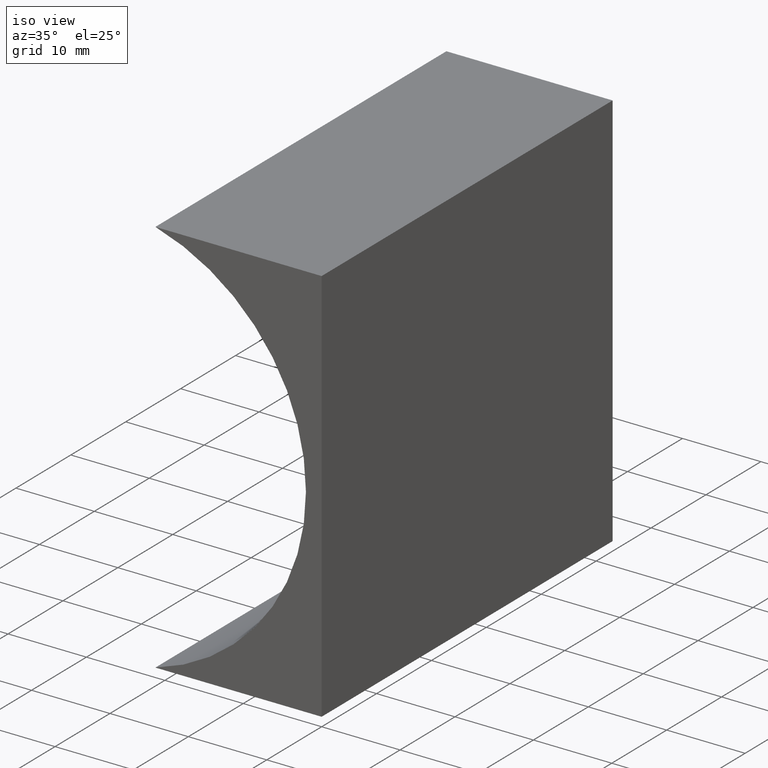
[diagram: clean part render]
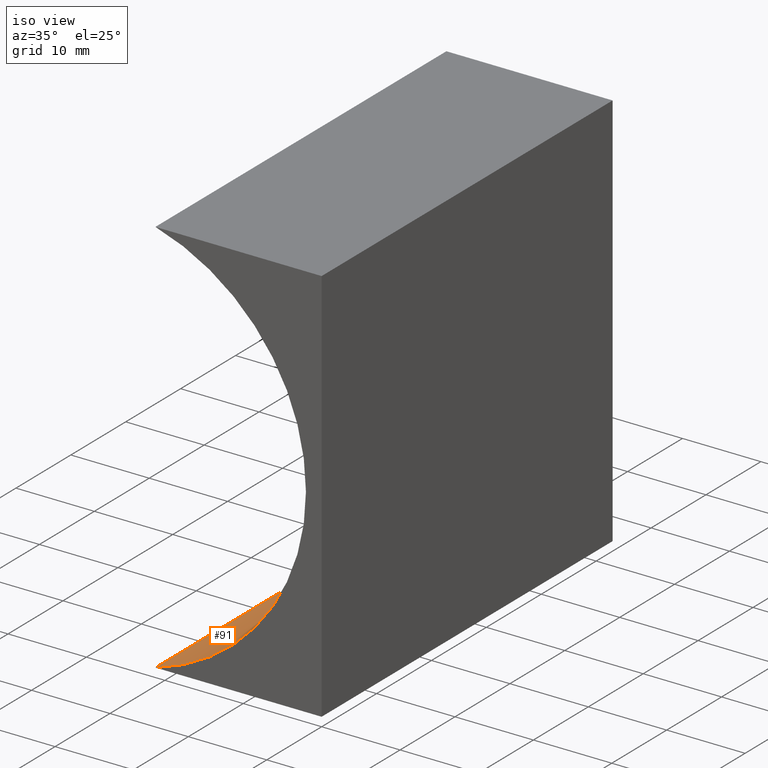
[diagram: same view with one face highlighted and labeled with its STEP entity id]
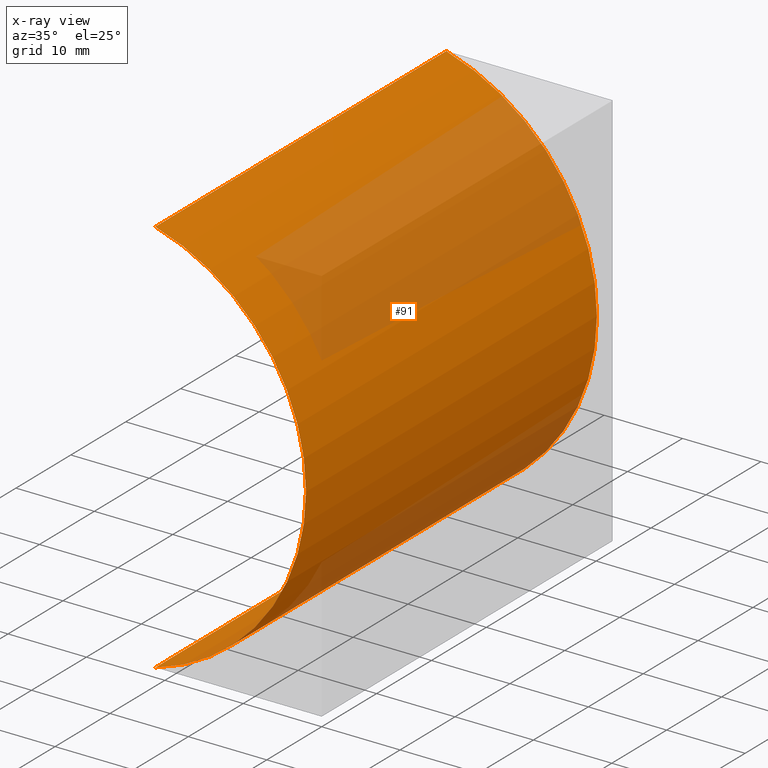
[diagram: x-ray of the same camera — body ghosted, the highlighted face saturated]
A machine part, iso view. The second image highlights one B-rep face of the part: STEP entity #91.
The next image is the same camera in x-ray: the body ghosted, the highlighted face saturated — about 36% of this face is hidden behind the body in this view.
In plain terms, the highlighted cylindrical surface (partial cylindrical patch) has radius 26.4 mm, axis along (-0, -1, -0).
Its self-contained STEP definition (entity closure, byte-faithful):
#2 = CARTESIAN_POINT ( 'NONE',  ( -28.39999999999999900, 0.0000000000000000000, 25.39999999999999900 ) ) ;
#4 = AXIS2_PLACEMENT_3D ( 'NONE', #26, #95, #9 ) ;
#7 = LINE ( 'NONE', #112, #59 ) ;
#9 = DIRECTION ( 'NONE',  ( 0.0000000000000000000, 0.0000000000000000000, -1.000000000000000000 ) ) ;
#10 = CYLINDRICAL_SURFACE ( 'NONE', #4, 26.39999999999999100 ) ;
#16 = CIRCLE ( 'NONE', #71, 26.39999999999999100 ) ;
#18 = CARTESIAN_POINT ( 'NONE',  ( -21.20277831382137300, 0.0000000000000000000, 50.79999999999999700 ) ) ;
#26 = CARTESIAN_POINT ( 'NONE',  ( -28.39999999999999900, 53.00000000000000000, 25.39999999999999900 ) ) ;
#34 = DIRECTION ( 'NONE',  ( -0.0000000000000000000, -1.000000000000000000, -0.0000000000000000000 ) ) ;
#37 = VERTEX_POINT ( 'NONE', #79 ) ;
#41 = EDGE_LOOP ( 'NONE', ( #50, #153, #88, #63 ) ) ;
#50 = ORIENTED_EDGE ( 'NONE', *, *, #149, .T. ) ;
#53 = VECTOR ( 'NONE', #111, 1000.000000000000000 ) ;
#58 = VERTEX_POINT ( 'NONE', #200 ) ;
#59 = VECTOR ( 'NONE', #155, 1000.000000000000000 ) ;
#62 = AXIS2_PLACEMENT_3D ( 'NONE', #164, #34, #148 ) ;
#63 = ORIENTED_EDGE ( 'NONE', *, *, #74, .T. ) ;
#71 = AXIS2_PLACEMENT_3D ( 'NONE', #2, #116, #193 ) ;
#74 = EDGE_CURVE ( 'NONE', #58, #75, #7, .T. ) ;
#75 = VERTEX_POINT ( 'NONE', #143 ) ;
#79 = CARTESIAN_POINT ( 'NONE',  ( -21.20277831382137300, 53.00000000000000000, 50.79999999999999700 ) ) ;
#86 = EDGE_CURVE ( 'NONE', #37, #190, #105, .T. ) ;
#88 = ORIENTED_EDGE ( 'NONE', *, *, #139, .F. ) ;
#91 = ADVANCED_FACE ( 'NONE', ( #196 ), #10, .F. ) ;
#95 = DIRECTION ( 'NONE',  ( -0.0000000000000000000, -1.000000000000000000, -0.0000000000000000000 ) ) ;
#105 = LINE ( 'NONE', #124, #53 ) ;
#111 = DIRECTION ( 'NONE',  ( -0.0000000000000000000, -1.000000000000000000, -0.0000000000000000000 ) ) ;
#112 = CARTESIAN_POINT ( 'NONE',  ( -21.20277831382138000, 53.00000000000000000, 3.469446951953614200E-015 ) ) ;
#116 = DIRECTION ( 'NONE',  ( -0.0000000000000000000, -1.000000000000000000, -0.0000000000000000000 ) ) ;
#124 = CARTESIAN_POINT ( 'NONE',  ( -21.20277831382137300, 53.00000000000000000, 50.79999999999999700 ) ) ;
#139 = EDGE_CURVE ( 'NONE', #58, #37, #142, .T. ) ;
#142 = CIRCLE ( 'NONE', #62, 26.39999999999999100 ) ;
#143 = CARTESIAN_POINT ( 'NONE',  ( -21.20277831382138000, 0.0000000000000000000, 3.469446951953614200E-015 ) ) ;
#148 = DIRECTION ( 'NONE',  ( 0.0000000000000000000, 0.0000000000000000000, 1.000000000000000000 ) ) ;
#149 = EDGE_CURVE ( 'NONE', #75, #190, #16, .T. ) ;
#153 = ORIENTED_EDGE ( 'NONE', *, *, #86, .F. ) ;
#155 = DIRECTION ( 'NONE',  ( -0.0000000000000000000, -1.000000000000000000, -0.0000000000000000000 ) ) ;
#164 = CARTESIAN_POINT ( 'NONE',  ( -28.39999999999999900, 53.00000000000000000, 25.39999999999999900 ) ) ;
#190 = VERTEX_POINT ( 'NONE', #18 ) ;
#193 = DIRECTION ( 'NONE',  ( 0.0000000000000000000, 0.0000000000000000000, 1.000000000000000000 ) ) ;
#196 = FACE_OUTER_BOUND ( 'NONE', #41, .T. ) ;
#200 = CARTESIAN_POINT ( 'NONE',  ( -21.20277831382138000, 53.00000000000000000, 3.469446951953614200E-015 ) ) ;